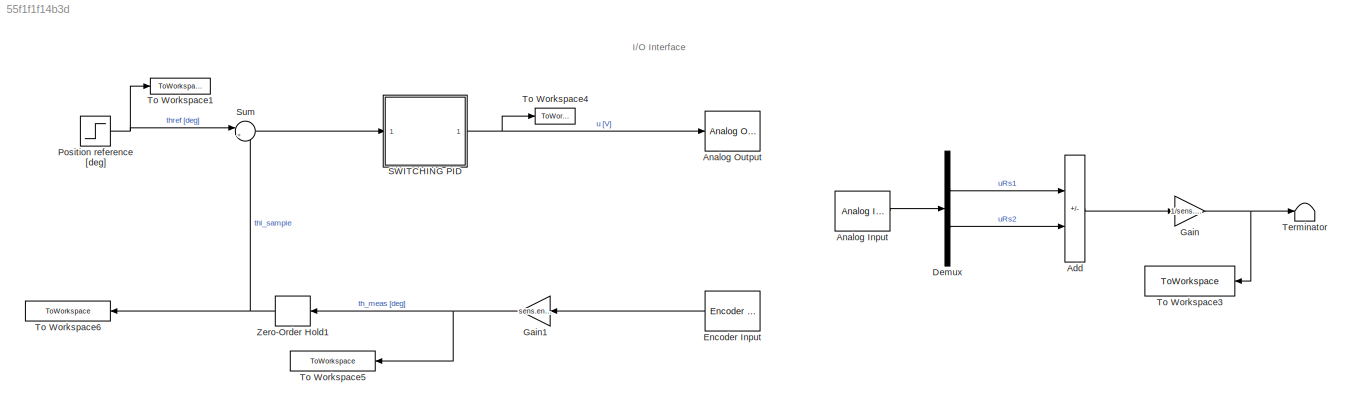
MODEL slx_55f1f1f14b3d
KIND model
CONFIG AbsTol = auto
CONFIG EnableMultiTasking = off
CONFIG FixedStep = 0.001
CONFIG MaxStep = auto
CONFIG MinStep = auto
CONFIG RelTol = 1e-3
CONFIG SampleTimeConstraint = Unconstrained
CONFIG SolverName = FixedStepAuto
CONFIG StartTime = 0.0
CONFIG StopTime = 10
BLOCK [Sum] Add
  IconShape = rectangular
  Inputs = +-
BLOCK [Reference] Analog Input  REF=sldrtlib/Analog Input
  AttributesFormatString = National Instruments\nPCI-6221 [auto]
  SourceBlock = sldrtlib/Analog Input
  SourceType = Simulink Desktop Real-Time Analog Input
BLOCK [Reference] Analog Output  REF=sldrtlib/Analog Output
  AttributesFormatString = National Instruments\nPCI-6221 [auto]
  SourceBlock = sldrtlib/Analog Output
  SourceType = Simulink Desktop Real-Time Analog Output
BLOCK [Demux] Demux
  Outputs = 2
BLOCK [Reference] Encoder Input  REF=sldrtlib/Encoder Input
  AttributesFormatString = National Instruments\nPCI-6221 [auto]
  NameLocation = top
  SourceBlock = sldrtlib/Encoder Input
  SourceType = Simulink Desktop Real-Time Encoder Input
BLOCK [Gain] Gain
  Gain = 1/sens.curr.Rs
BLOCK [Gain] Gain1
  Gain = sens.enc.pulse2deg
  NameLocation = top
BLOCK [Step] Position reference [deg]
  After = simul.stepdeg
  SampleTime = challenge.Ts
  Time = 0
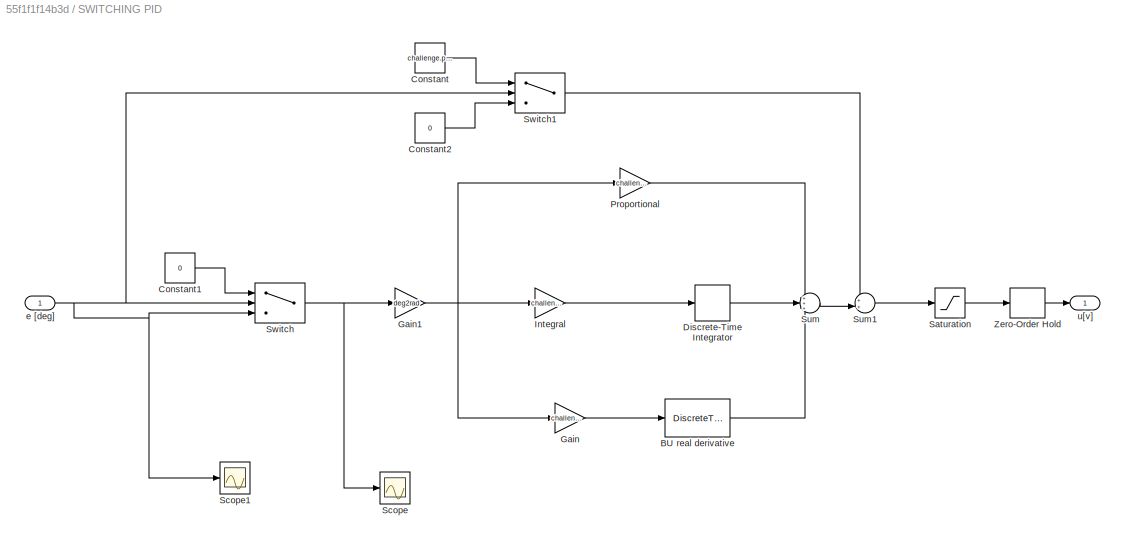
BLOCK [SubSystem] SWITCHING PID
BLOCK [DiscreteTransferFcn] SWITCHING PID/BU real derivative
  Denominator = [(challenge.pid.Tl+challenge.Ts)  -challenge.pid.Tl]
  InputPortMap = u0
  Numerator = [1 -1]
  SampleTime = challenge.Ts
BLOCK [Constant] SWITCHING PID/Constant
  Value = challenge.pid.voltage
BLOCK [Constant] SWITCHING PID/Constant1
  Value = 0
BLOCK [Constant] SWITCHING PID/Constant2
  Value = 0
BLOCK [DiscreteIntegrator] SWITCHING PID/Discrete-Time Integrator
  ICPrevOutput = DiscIntNeverNeededParam
  ICPrevScaledInput = DiscIntNeverNeededParam
  InitialConditionSetting = Auto
  IntegratorMethod = Integration: Backward Euler
  SampleTime = challenge.Ts
BLOCK [Gain] SWITCHING PID/Gain
  Gain = challenge.pid.kd
BLOCK [Gain] SWITCHING PID/Gain1
  Gain = deg2rad
BLOCK [Gain] SWITCHING PID/Integral
  Gain = challenge.pid.Ki
BLOCK [Gain] SWITCHING PID/Proportional
  Gain = challenge.pid.Kp
BLOCK [Saturate] SWITCHING PID/Saturation
  LowerLimit = -10
  UpperLimit = 10
BLOCK [Scope] SWITCHING PID/Scope
  Floating = off
  NumInputPorts = 1
  ScopeSpecificationString = Simulink.scopes.TimeScopeBlockCfg('CurrentConfiguration', extmgr.ConfigurationSet(extmgr.Configuration('Core','General UI',true),extmgr.Configuration('Core','Source UI',true),extmgr.Configuration('Sources','WiredSimulink',true,'DataLoggingVariableName','ScopeData1'),extmgr.Configuration('Visuals','Time Domain',true,'SerializedDisplays',{struct('MinYLimReal','-75.8775','MaxYLimReal','12.0975','YLab...<+1384ch>
BLOCK [Scope] SWITCHING PID/Scope1
  Floating = off
  NumInputPorts = 1
  ScopeSpecificationString = Simulink.scopes.TimeScopeBlockCfg('CurrentConfiguration', extmgr.ConfigurationSet(extmgr.Configuration('Core','General UI',true),extmgr.Configuration('Core','Source UI',true),extmgr.Configuration('Sources','WiredSimulink',true,'DataLoggingVariableName','ScopeData2'),extmgr.Configuration('Visuals','Time Domain',true,'SerializedDisplays',{struct('MinYLimReal','52.60944','MaxYLimReal','66.25678','YLa...<+1391ch>
BLOCK [Sum] SWITCHING PID/Sum
  Inputs = +++
BLOCK [Sum] SWITCHING PID/Sum1
  Inputs = ++|
BLOCK [Switch] SWITCHING PID/Switch
  InputSameDT = off
  SaturateOnIntegerOverflow = off
  Threshold = simul.stepdeg*0.8
BLOCK [Switch] SWITCHING PID/Switch1
  InputSameDT = off
  SaturateOnIntegerOverflow = off
  Threshold = simul.stepdeg*0.2
BLOCK [ZeroOrderHold] SWITCHING PID/Zero-Order Hold
  SampleTime = challenge.Ts
BLOCK [Inport] SWITCHING PID/e [deg]
BLOCK [Outport] SWITCHING PID/u[v]
BLOCK [Sum] Sum
  Inputs = |+-
BLOCK [Terminator] Terminator
BLOCK [ToWorkspace] To Workspace1
  FixptAsFi = on
  MaxDataPoints = inf
  SampleTime = Ts
  SaveFormat = Structure With Time
  VariableName = thref
BLOCK [ToWorkspace] To Workspace3
  FixptAsFi = on
  MaxDataPoints = inf
  NameLocation = top
  SampleTime = Ts
  SaveFormat = Structure With Time
  VariableName = ia
BLOCK [ToWorkspace] To Workspace4
  FixptAsFi = on
  MaxDataPoints = inf
  SampleTime = Ts
  SaveFormat = Structure With Time
  VariableName = u
BLOCK [ToWorkspace] To Workspace5
  FixptAsFi = on
  MaxDataPoints = inf
  NameLocation = top
  SampleTime = Ts
  SaveFormat = Structure With Time
  VariableName = thl_meas
BLOCK [ToWorkspace] To Workspace6
  FixptAsFi = on
  MaxDataPoints = inf
  NameLocation = top
  SampleTime = Ts
  SaveFormat = Structure With Time
  VariableName = thl_sample
BLOCK [ZeroOrderHold] Zero-Order Hold1
  NameLocation = top
  SampleTime = challenge.Ts
ANNOTATION (root): I/O Interface
LINE Add:1 -> Gain:1
LINE Analog Input:1 -> Demux:1
LINE Demux:1 -> Add:1
LINE Demux:2 -> Add:2
LINE Encoder Input:1 -> Gain1:1
NET Gain1:1 -> To Workspace5:1, Zero-Order Hold1:1
NET Gain:1 -> Terminator:1, To Workspace3:1
NET Position reference [deg]:1 -> Sum:1, To Workspace1:1
LINE SWITCHING PID/BU real derivative:1 -> SWITCHING PID/Sum:3
LINE SWITCHING PID/Constant1:1 -> SWITCHING PID/Switch:1
LINE SWITCHING PID/Constant2:1 -> SWITCHING PID/Switch1:3
LINE SWITCHING PID/Constant:1 -> SWITCHING PID/Switch1:1
LINE SWITCHING PID/Discrete-Time Integrator:1 -> SWITCHING PID/Sum:2
NET SWITCHING PID/Gain1:1 -> SWITCHING PID/Gain:1, SWITCHING PID/Integral:1, SWITCHING PID/Proportional:1
LINE SWITCHING PID/Gain:1 -> SWITCHING PID/BU real derivative:1
LINE SWITCHING PID/Integral:1 -> SWITCHING PID/Discrete-Time Integrator:1
LINE SWITCHING PID/Proportional:1 -> SWITCHING PID/Sum:1
LINE SWITCHING PID/Saturation:1 -> SWITCHING PID/Zero-Order Hold:1
LINE SWITCHING PID/Sum1:1 -> SWITCHING PID/Saturation:1
LINE SWITCHING PID/Sum:1 -> SWITCHING PID/Sum1:2
LINE SWITCHING PID/Switch1:1 -> SWITCHING PID/Sum1:1
NET SWITCHING PID/Switch:1 -> SWITCHING PID/Gain1:1, SWITCHING PID/Scope:1
LINE SWITCHING PID/Zero-Order Hold:1 -> SWITCHING PID/u[v]:1
NET SWITCHING PID/e [deg]:1 -> SWITCHING PID/Scope1:1, SWITCHING PID/Switch1:2, SWITCHING PID/Switch:2, SWITCHING PID/Switch:3
NET SWITCHING PID:1 -> Analog Output:1, To Workspace4:1
LINE Sum:1 -> SWITCHING PID:1
NET Zero-Order Hold1:1 -> Sum:2, To Workspace6:1
note: NET lines group one-source signal fan-out (src -> all destinations, sorted); 1:1 wires keep LINE
